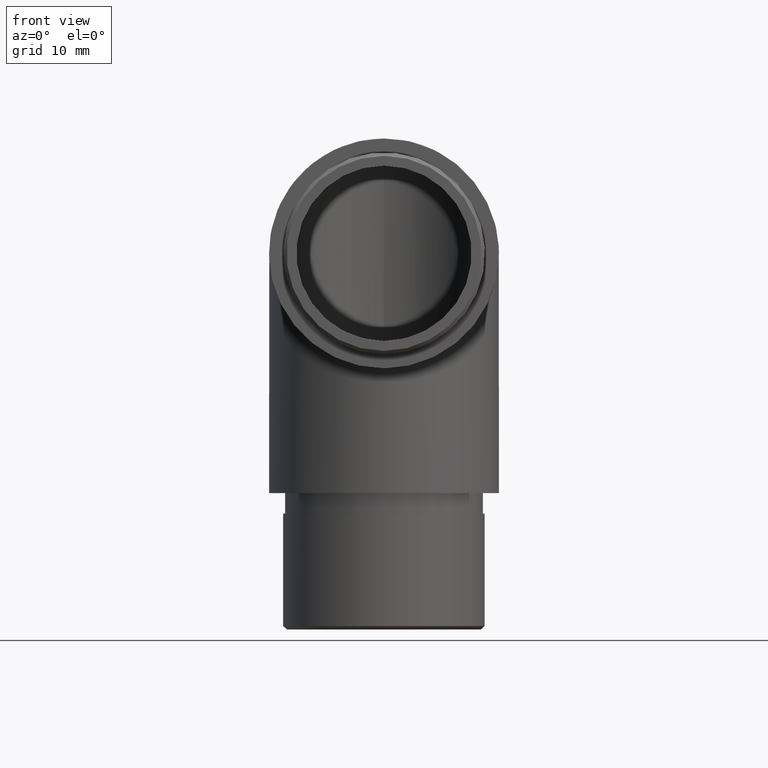
[diagram: clean part render]
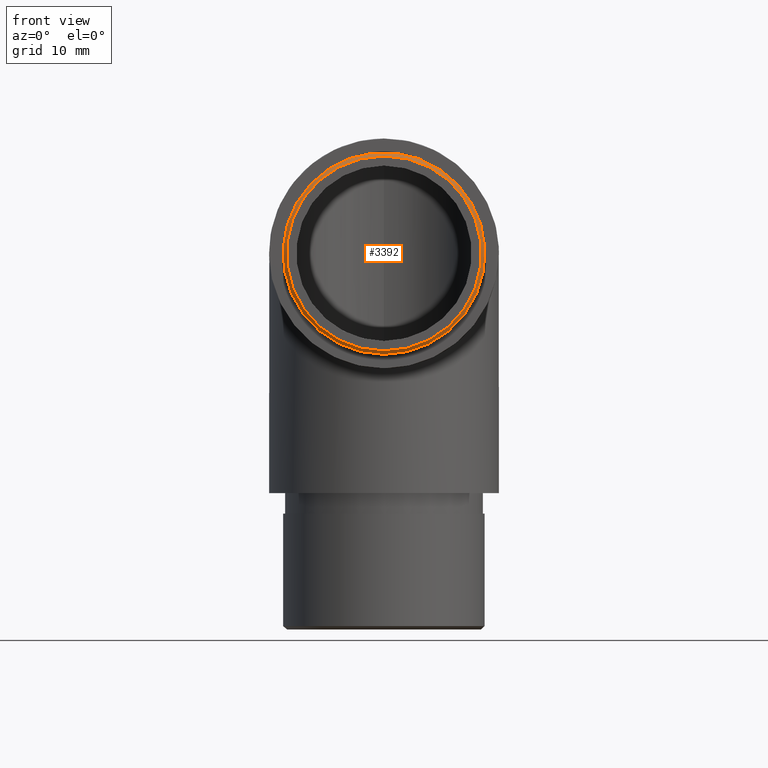
[diagram: same view with one face highlighted and labeled with its STEP entity id]
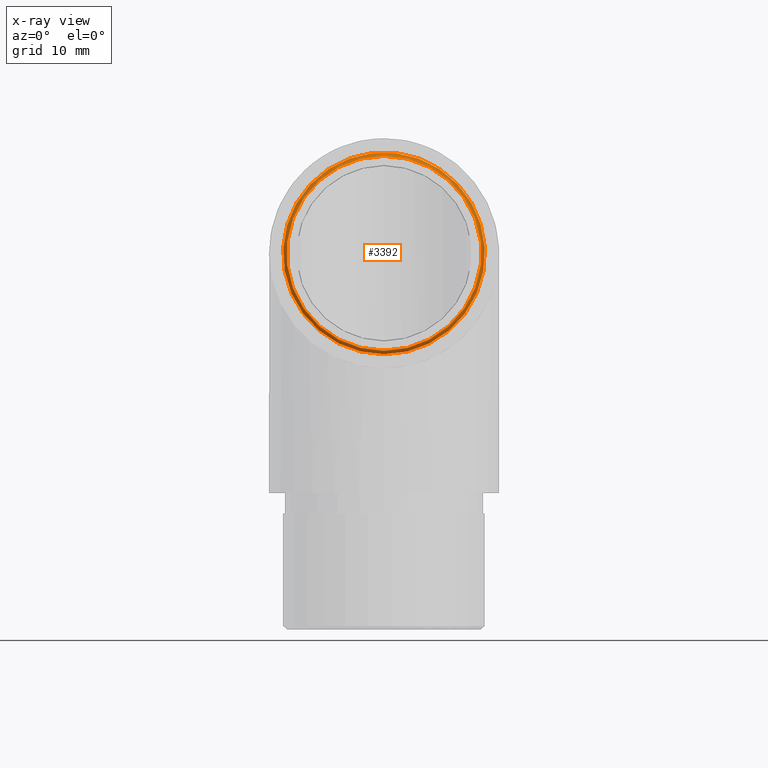
[diagram: x-ray of the same camera — body ghosted, the highlighted face saturated]
A machine part, front view. The second image highlights one B-rep face of the part: STEP entity #3392.
The next image is the same camera in x-ray: the body ghosted, the highlighted face saturated — about 0% of this face is hidden behind the body in this view.
In plain terms, the highlighted conical surface has half-angle 45 deg.
Its self-contained STEP definition (entity closure, byte-faithful):
#269 = AXIS2_PLACEMENT_3D ( 'NONE', #6264, #10068, #11835 ) ;
#1674 = FACE_OUTER_BOUND ( 'NONE', #4517, .T. ) ;
#2016 = AXIS2_PLACEMENT_3D ( 'NONE', #3651, #6306, #8290 ) ;
#3392 = ADVANCED_FACE ( 'NONE', ( #1674, #6289 ), #6874, .T. ) ;
#3651 = CARTESIAN_POINT ( 'NONE',  ( 0.0000000000000000000, -20.00000000000000000, 0.0000000000000000000 ) ) ;
#4433 = VERTEX_POINT ( 'NONE', #6076 ) ;
#4517 = EDGE_LOOP ( 'NONE', ( #9180 ) ) ;
#5117 = DIRECTION ( 'NONE',  ( 0.0000000000000000000, 0.0000000000000000000, -1.000000000000000000 ) ) ;
#6076 = CARTESIAN_POINT ( 'NONE',  ( 0.0000000000000000000, -20.00000000000000000, -14.29999999999997900 ) ) ;
#6264 = CARTESIAN_POINT ( 'NONE',  ( 0.0000000000000000000, -19.49999999999998600, 0.0000000000000000000 ) ) ;
#6279 = VERTEX_POINT ( 'NONE', #10809 ) ;
#6289 = FACE_BOUND ( 'NONE', #7082, .T. ) ;
#6306 = DIRECTION ( 'NONE',  ( 0.0000000000000000000, 1.000000000000000000, 0.0000000000000000000 ) ) ;
#6351 = EDGE_CURVE ( 'NONE', #6279, #6279, #10533, .T. ) ;
#6874 = CONICAL_SURFACE ( 'NONE', #2016, 14.29999999999997900, 0.7853981633974552700 ) ;
#7082 = EDGE_LOOP ( 'NONE', ( #10404 ) ) ;
#7780 = DIRECTION ( 'NONE',  ( 0.0000000000000000000, -1.000000000000000000, 0.0000000000000000000 ) ) ;
#7825 = CARTESIAN_POINT ( 'NONE',  ( 0.0000000000000000000, -20.00000000000000000, 0.0000000000000000000 ) ) ;
#8266 = EDGE_CURVE ( 'NONE', #4433, #4433, #10509, .T. ) ;
#8290 = DIRECTION ( 'NONE',  ( 0.0000000000000000000, 0.0000000000000000000, 1.000000000000000000 ) ) ;
#8755 = AXIS2_PLACEMENT_3D ( 'NONE', #7825, #7780, #5117 ) ;
#9180 = ORIENTED_EDGE ( 'NONE', *, *, #6351, .F. ) ;
#10068 = DIRECTION ( 'NONE',  ( 0.0000000000000000000, 1.000000000000000000, 0.0000000000000000000 ) ) ;
#10404 = ORIENTED_EDGE ( 'NONE', *, *, #8266, .F. ) ;
#10509 = CIRCLE ( 'NONE', #8755, 14.29999999999997900 ) ;
#10533 = CIRCLE ( 'NONE', #269, 14.80000000000000100 ) ;
#10809 = CARTESIAN_POINT ( 'NONE',  ( 0.0000000000000000000, -19.49999999999998600, -14.80000000000000100 ) ) ;
#11835 = DIRECTION ( 'NONE',  ( 0.0000000000000000000, 0.0000000000000000000, -1.000000000000000000 ) ) ;